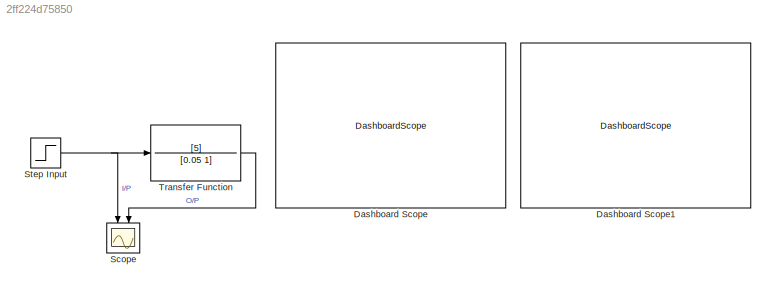
MODEL slx_2ff224d75850
KIND model
CONFIG AbsTol = auto
CONFIG EnableMultiTasking = off
CONFIG FixedStep = auto
CONFIG MaxStep = auto
CONFIG MinStep = auto
CONFIG RelTol = 1e-3
CONFIG SampleTimeConstraint = Unconstrained
CONFIG SolverName = VariableStepAuto
CONFIG StartTime = 0.0
CONFIG StopTime = 10.0
BLOCK [DashboardScope] Dashboard Scope
BLOCK [DashboardScope] Dashboard Scope1
BLOCK [Scope] Scope 
  Floating = off
  NameLocation = left
  NumInputPorts = 2
  Ports = [2]
  ScopeSpecificationString = Simulink.scopes.TimeScopeBlockCfg('CurrentConfiguration', extmgr.ConfigurationSet(extmgr.Configuration('Core','General UI',true),extmgr.Configuration('Core','Source UI',true),extmgr.Configuration('Sources','WiredSimulink',true),extmgr.Configuration('Visuals','Time Domain',true,'SerializedDisplays',{struct('MinYLimReal','0.5','MaxYLimReal','5.5','YLabelReal','','MinYLimMag','0.5','MaxYLimMag','5.5'...<+2102ch>
BLOCK [Step] Step Input
  After = 5
  Before = 1
  SampleTime = 0
BLOCK [TransferFcn] Transfer Function
  Denominator = [0.05 1]
  Numerator = [5]
NET Step Input:1 -> Scope :1, Transfer Function:1
LINE Transfer Function:1 -> Scope :2
note: NET lines group one-source signal fan-out (src -> all destinations, sorted); 1:1 wires keep LINE
